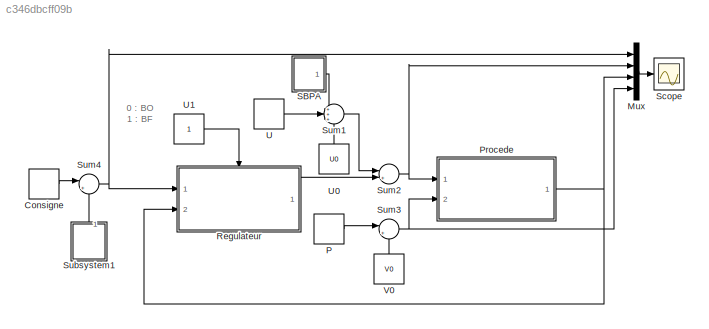
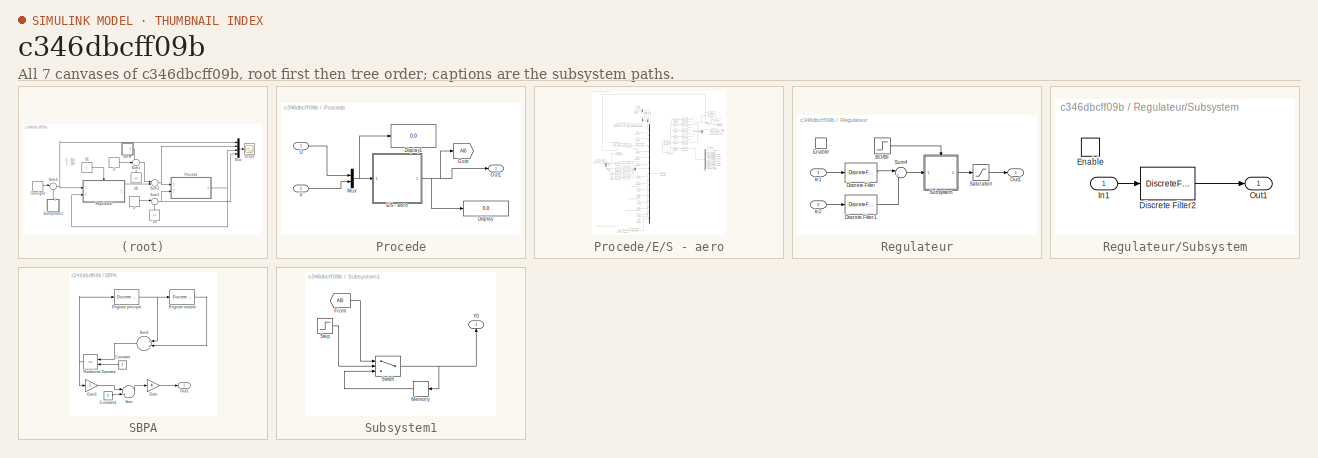
[diagram: thumbnail index - all 7 canvases of the model, root first then tree order]
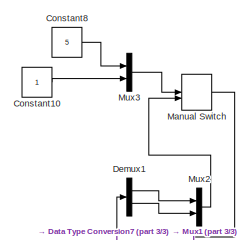
[diagram: Procede/E/S - aero - part 1/3, top center region]
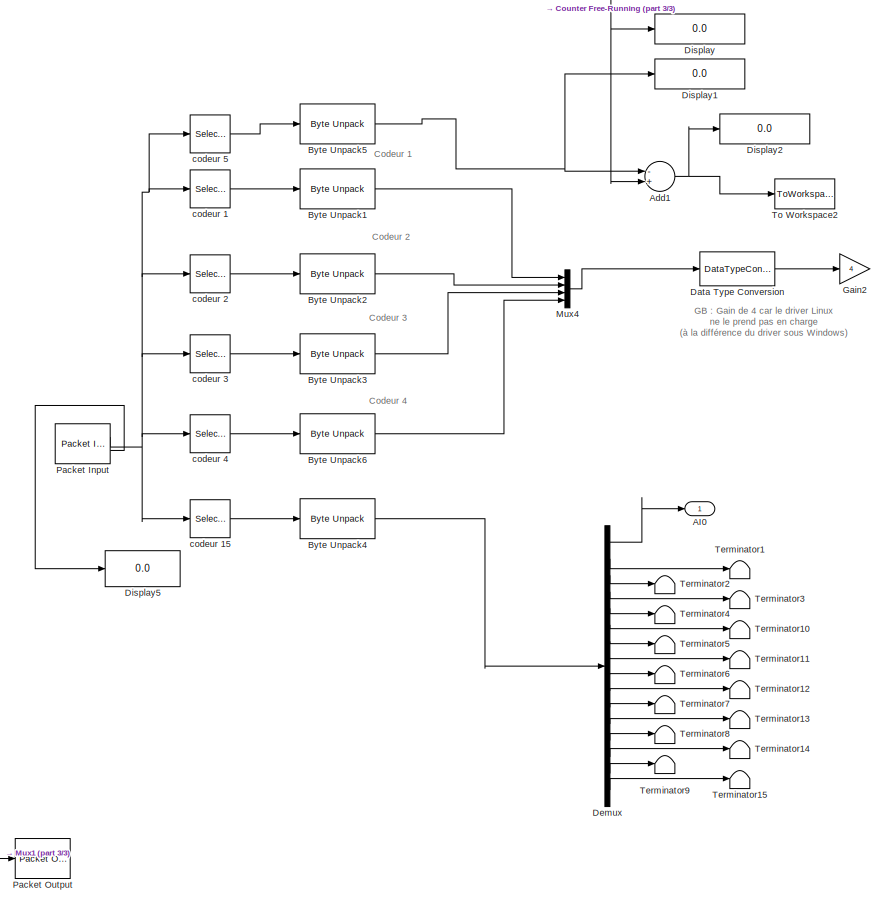
[diagram: Procede/E/S - aero - part 2/3, middle right region]
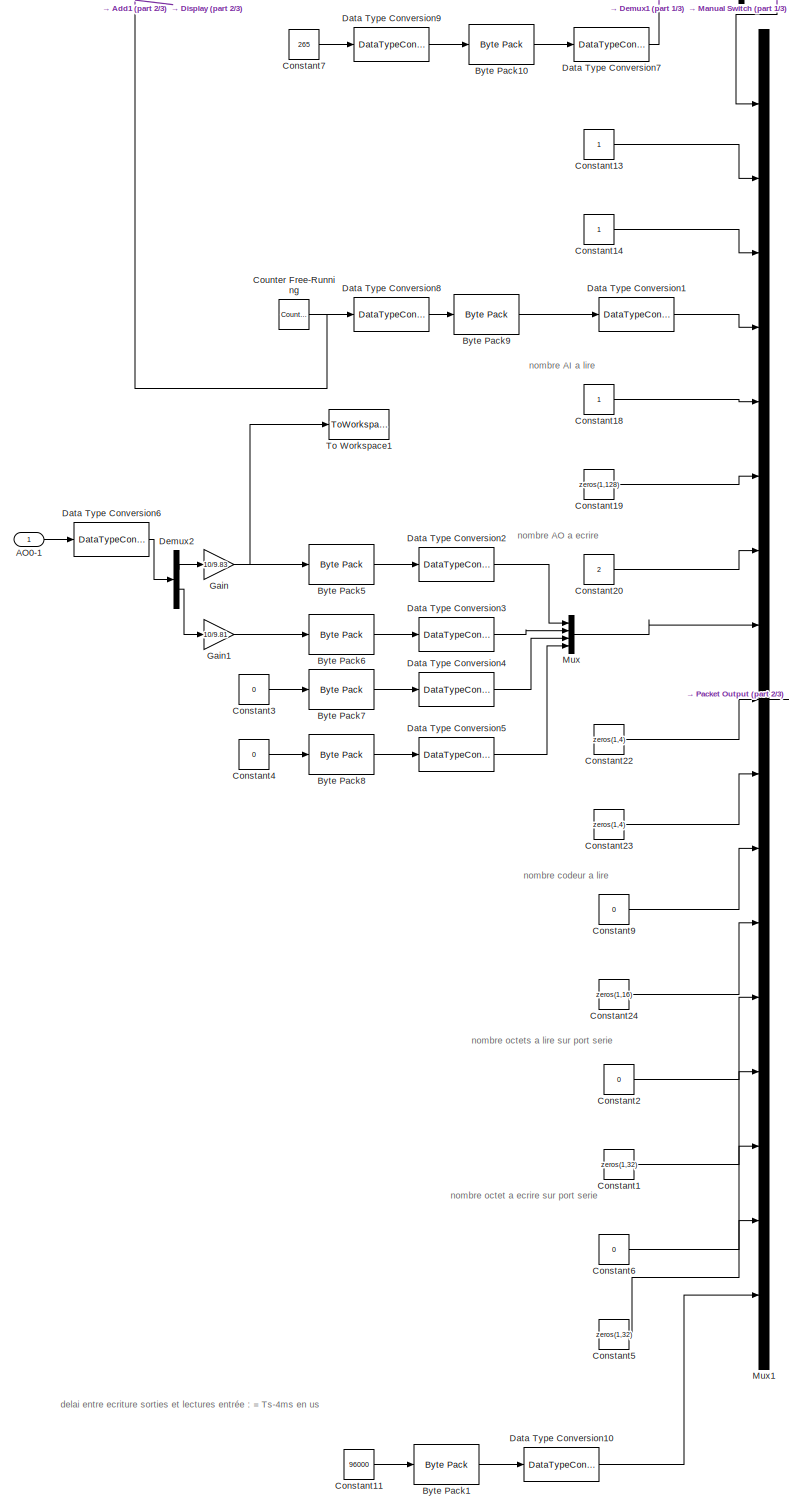
[diagram: Procede/E/S - aero - part 3/3, left side, full height]
MODEL slx_c346dbcff09b
KIND model
CONFIG AbsTol = auto
CONFIG EnableMultiTasking = off
CONFIG FixedStep = Ts
CONFIG MaxStep = auto
CONFIG MinStep = auto
CONFIG RelTol = 1e-3
CONFIG SampleTimeConstraint = Unconstrained
CONFIG Solver = ode5
CONFIG SolverName = ode5
CONFIG StartTime = 0.0
CONFIG StopTime = inf
BLOCK [DiscretePulseGenerator] Consigne
  Period = 200
  PhaseDelay = 100
  Ports = [0, 1]
  PulseType = Time based
  PulseWidth = 50
BLOCK [Mux] Mux
  DisplayOption = bar
  Ports = [4, 1]
BLOCK [DiscretePulseGenerator] P
  Amplitude = -1
  Period = 200
  PhaseDelay = 150
  Ports = [0, 1]
  PulseType = Time based
  PulseWidth = 50
BLOCK [SubSystem] Procede
  Ports = [2, 1]
  RequestExecContextInheritance = off
BLOCK [Display] Procede/Display
  Decimation = 1
  Ports = [1]
BLOCK [Display] Procede/Display1
  Decimation = 1
  Ports = [1]
BLOCK [SubSystem] Procede/E//S - aero
  Ports = [1, 1]
  RequestExecContextInheritance = off
BLOCK [Outport] Procede/E//S - aero/AI0
  IconDisplay = Port number
BLOCK [Inport] Procede/E//S - aero/AO0-1 
  IconDisplay = Port number
BLOCK [Sum] Procede/E//S - aero/Add1
  InputSameDT = off
  Inputs = -+
  OutDataTypeStr = Inherit: Inherit via internal rule
  Ports = [2, 1]
  SaturateOnIntegerOverflow = off
BLOCK [Reference] Procede/E//S - aero/Byte Pack1  REF=etargetslib/Byte Pack
  Ports = [1, 1]
  SourceBlock = etargetslib/Byte Pack
  SourceType = Byte pack
BLOCK [Reference] Procede/E//S - aero/Byte Pack10  REF=etargetslib/Byte Pack
  Ports = [1, 1]
  SourceBlock = etargetslib/Byte Pack
  SourceType = Byte pack
BLOCK [Reference] Procede/E//S - aero/Byte Pack5  REF=etargetslib/Byte Pack
  Ports = [1, 1]
  SourceBlock = etargetslib/Byte Pack
  SourceType = Byte pack
BLOCK [Reference] Procede/E//S - aero/Byte Pack6  REF=etargetslib/Byte Pack
  Ports = [1, 1]
  SourceBlock = etargetslib/Byte Pack
  SourceType = Byte pack
BLOCK [Reference] Procede/E//S - aero/Byte Pack7  REF=etargetslib/Byte Pack
  Ports = [1, 1]
  SourceBlock = etargetslib/Byte Pack
  SourceType = Byte pack
BLOCK [Reference] Procede/E//S - aero/Byte Pack8  REF=etargetslib/Byte Pack
  Ports = [1, 1]
  SourceBlock = etargetslib/Byte Pack
  SourceType = Byte pack
BLOCK [Reference] Procede/E//S - aero/Byte Pack9  REF=etargetslib/Byte Pack
  Ports = [1, 1]
  SourceBlock = etargetslib/Byte Pack
  SourceType = Byte pack
BLOCK [Reference] Procede/E//S - aero/Byte Unpack1  REF=etargetslib/Byte Unpack
  Ports = [1, 1]
  SourceBlock = etargetslib/Byte Unpack
  SourceType = Byte Unpack
BLOCK [Reference] Procede/E//S - aero/Byte Unpack2  REF=etargetslib/Byte Unpack
  Ports = [1, 1]
  SourceBlock = etargetslib/Byte Unpack
  SourceType = Byte Unpack
BLOCK [Reference] Procede/E//S - aero/Byte Unpack3  REF=etargetslib/Byte Unpack
  Ports = [1, 1]
  SourceBlock = etargetslib/Byte Unpack
  SourceType = Byte Unpack
BLOCK [Reference] Procede/E//S - aero/Byte Unpack4  REF=etargetslib/Byte Unpack
  Ports = [1, 1]
  SourceBlock = etargetslib/Byte Unpack
  SourceType = Byte Unpack
BLOCK [Reference] Procede/E//S - aero/Byte Unpack5  REF=etargetslib/Byte Unpack
  Ports = [1, 1]
  SourceBlock = etargetslib/Byte Unpack
  SourceType = Byte Unpack
BLOCK [Reference] Procede/E//S - aero/Byte Unpack6  REF=etargetslib/Byte Unpack
  Ports = [1, 1]
  SourceBlock = etargetslib/Byte Unpack
  SourceType = Byte Unpack
BLOCK [Constant] Procede/E//S - aero/Constant1
  Value = zeros(1,32)
BLOCK [Constant] Procede/E//S - aero/Constant10
BLOCK [Constant] Procede/E//S - aero/Constant11
  OutDataTypeStr = uint32
  Value = 96000
BLOCK [Constant] Procede/E//S - aero/Constant13
BLOCK [Constant] Procede/E//S - aero/Constant14
BLOCK [Constant] Procede/E//S - aero/Constant18
BLOCK [Constant] Procede/E//S - aero/Constant19
  Value = zeros(1,128)
BLOCK [Constant] Procede/E//S - aero/Constant2
  Value = 0
BLOCK [Constant] Procede/E//S - aero/Constant20
  OutDataTypeStr = Inherit: Inherit via back propagation
  Value = 2
BLOCK [Constant] Procede/E//S - aero/Constant22
  Value = zeros(1,4)
BLOCK [Constant] Procede/E//S - aero/Constant23
  Value = zeros(1,4)
BLOCK [Constant] Procede/E//S - aero/Constant24
  Value = zeros(1,16)
BLOCK [Constant] Procede/E//S - aero/Constant3
  OutDataTypeStr = double
  Value = 0
BLOCK [Constant] Procede/E//S - aero/Constant4
  OutDataTypeStr = double
  Value = 0
BLOCK [Constant] Procede/E//S - aero/Constant5
  Value = zeros(1,32)
BLOCK [Constant] Procede/E//S - aero/Constant6
  Value = 0
BLOCK [Constant] Procede/E//S - aero/Constant7
  Value = 265
BLOCK [Constant] Procede/E//S - aero/Constant8
  Value = 5
BLOCK [Constant] Procede/E//S - aero/Constant9
  Value = 0
BLOCK [Reference] Procede/E//S - aero/Counter Free-Running  REF=simulink/Sources/Counter
Free-Running
  Ports = [0, 1]
  SourceBlock = simulink/Sources/Counter\nFree-Running
  SourceProductBaseCode = SL
  SourceProductName = Simulink
  SourceType = Counter Free-Running
BLOCK [DataTypeConversion] Procede/E//S - aero/Data Type Conversion
  RndMeth = Floor
  SaturateOnIntegerOverflow = off
BLOCK [DataTypeConversion] Procede/E//S - aero/Data Type Conversion1
  RndMeth = Floor
  SaturateOnIntegerOverflow = off
BLOCK [DataTypeConversion] Procede/E//S - aero/Data Type Conversion10
  RndMeth = Floor
  SaturateOnIntegerOverflow = off
BLOCK [DataTypeConversion] Procede/E//S - aero/Data Type Conversion2
  RndMeth = Floor
  SaturateOnIntegerOverflow = off
BLOCK [DataTypeConversion] Procede/E//S - aero/Data Type Conversion3
  RndMeth = Floor
  SaturateOnIntegerOverflow = off
BLOCK [DataTypeConversion] Procede/E//S - aero/Data Type Conversion4
  RndMeth = Floor
  SaturateOnIntegerOverflow = off
BLOCK [DataTypeConversion] Procede/E//S - aero/Data Type Conversion5
  RndMeth = Floor
  SaturateOnIntegerOverflow = off
BLOCK [DataTypeConversion] Procede/E//S - aero/Data Type Conversion6
  RndMeth = Floor
  SaturateOnIntegerOverflow = off
BLOCK [DataTypeConversion] Procede/E//S - aero/Data Type Conversion7
  RndMeth = Floor
  SaturateOnIntegerOverflow = off
BLOCK [DataTypeConversion] Procede/E//S - aero/Data Type Conversion8
  RndMeth = Floor
  SaturateOnIntegerOverflow = off
BLOCK [DataTypeConversion] Procede/E//S - aero/Data Type Conversion9
  RndMeth = Floor
  SaturateOnIntegerOverflow = off
BLOCK [Demux] Procede/E//S - aero/Demux
  DisplayOption = bar
  Outputs = 16
  Ports = [1, 16]
BLOCK [Demux] Procede/E//S - aero/Demux1
  DisplayOption = bar
  Outputs = 2
  Ports = [1, 2]
BLOCK [Demux] Procede/E//S - aero/Demux2
  DisplayOption = bar
  Outputs = 2
  Ports = [1, 2]
BLOCK [Display] Procede/E//S - aero/Display
  Decimation = 1
  Ports = [1]
BLOCK [Display] Procede/E//S - aero/Display1
  Decimation = 1
  Ports = [1]
BLOCK [Display] Procede/E//S - aero/Display2
  Decimation = 1
  Ports = [1]
BLOCK [Display] Procede/E//S - aero/Display5
  Decimation = 1
  Ports = [1]
BLOCK [Gain] Procede/E//S - aero/Gain
  Gain = 10/9.83
  OutDataTypeStr = Inherit: Inherit via internal rule
  ParamDataTypeStr = Inherit: Inherit via internal rule
  SaturateOnIntegerOverflow = off
BLOCK [Gain] Procede/E//S - aero/Gain1
  Gain = 10/9.81
  OutDataTypeStr = Inherit: Inherit via internal rule
  ParamDataTypeStr = Inherit: Inherit via internal rule
  SaturateOnIntegerOverflow = off
BLOCK [Gain] Procede/E//S - aero/Gain2
  Gain = 4
  OutDataTypeStr = Inherit: Inherit via internal rule
  ParamDataTypeStr = Inherit: Inherit via internal rule
  SaturateOnIntegerOverflow = off
BLOCK [ManualSwitch] Procede/E//S - aero/Manual Switch
  CurrentSetting = 0
BLOCK [Mux] Procede/E//S - aero/Mux
  DisplayOption = bar
  Ports = [4, 1]
BLOCK [Mux] Procede/E//S - aero/Mux1
  DisplayOption = bar
  Inputs = 17
  Ports = [17, 1]
BLOCK [Mux] Procede/E//S - aero/Mux2
  DisplayOption = bar
  Inputs = 2
  Ports = [2, 1]
BLOCK [Mux] Procede/E//S - aero/Mux3
  DisplayOption = bar
  Inputs = 2
  Ports = [2, 1]
BLOCK [Mux] Procede/E//S - aero/Mux4
  DisplayOption = bar
  Ports = [4, 1]
BLOCK [Reference] Procede/E//S - aero/Packet Input  REF=sldrtlib/Packet Input
  AttributesFormatString = Standard Devices\nUDP Protocol [26CAh]
  Ports = [0, 2]
  SourceBlock = sldrtlib/Packet Input
  SourceProductBaseCode = WT
  SourceProductName = Simulink Desktop Real-Time
  SourceType = Simulink Desktop Real-Time Packet Input
BLOCK [Reference] Procede/E//S - aero/Packet Output  REF=sldrtlib/Packet Output
  AttributesFormatString = Standard Devices\nUDP Protocol [26CAh]
  Ports = [1]
  SourceBlock = sldrtlib/Packet Output
  SourceProductBaseCode = WT
  SourceProductName = Simulink Desktop Real-Time
  SourceType = Simulink Desktop Real-Time Packet Output
BLOCK [Terminator] Procede/E//S - aero/Terminator1
BLOCK [Terminator] Procede/E//S - aero/Terminator10
BLOCK [Terminator] Procede/E//S - aero/Terminator11
BLOCK [Terminator] Procede/E//S - aero/Terminator12
BLOCK [Terminator] Procede/E//S - aero/Terminator13
BLOCK [Terminator] Procede/E//S - aero/Terminator14
BLOCK [Terminator] Procede/E//S - aero/Terminator15
BLOCK [Terminator] Procede/E//S - aero/Terminator2
BLOCK [Terminator] Procede/E//S - aero/Terminator3
BLOCK [Terminator] Procede/E//S - aero/Terminator4
BLOCK [Terminator] Procede/E//S - aero/Terminator5
BLOCK [Terminator] Procede/E//S - aero/Terminator6
BLOCK [Terminator] Procede/E//S - aero/Terminator7
BLOCK [Terminator] Procede/E//S - aero/Terminator8
BLOCK [Terminator] Procede/E//S - aero/Terminator9
BLOCK [ToWorkspace] Procede/E//S - aero/To Workspace1
  MaxDataPoints = inf
  Ports = [1]
  SampleTime = -1
  SaveFormat = Structure With Time
  VariableName = aoser
BLOCK [ToWorkspace] Procede/E//S - aero/To Workspace2
  MaxDataPoints = inf
  Ports = [1]
  SampleTime = -1
  SaveFormat = Structure With Time
  VariableName = retard
BLOCK [Selector] Procede/E//S - aero/codeur 1
  IndexOptions = Index vector (dialog)
  Indices = [180 181 182 183]
  InputPortWidth = 265
  OutputSizes = 1
  Ports = [1, 1]
BLOCK [Selector] Procede/E//S - aero/codeur 15
  IndexOptions = Index vector (dialog)
  Indices = [10:137]
  InputPortWidth = 265
  OutputSizes = 1
  Ports = [1, 1]
BLOCK [Selector] Procede/E//S - aero/codeur 2
  IndexOptions = Index vector (dialog)
  Indices = [184 185 186 187]
  InputPortWidth = 265
  OutputSizes = 1
  Ports = [1, 1]
BLOCK [Selector] Procede/E//S - aero/codeur 3
  IndexOptions = Index vector (dialog)
  Indices = [188 189 190 191]
  InputPortWidth = 265
  OutputSizes = 1
  Ports = [1, 1]
BLOCK [Selector] Procede/E//S - aero/codeur 4
  IndexOptions = Index vector (dialog)
  Indices = [192 193 194 195]
  InputPortWidth = 265
  OutputSizes = 1
  Ports = [1, 1]
BLOCK [Selector] Procede/E//S - aero/codeur 5
  IndexOptions = Index vector (dialog)
  Indices = [5 6 7 8]
  InputPortWidth = 265
  OutputSizes = 1
  Ports = [1, 1]
BLOCK [Goto] Procede/Goto
  GotoTag = AI0
  TagVisibility = global
BLOCK [Mux] Procede/Mux
  DisplayOption = bar
  Inputs = 2
  Ports = [2, 1]
BLOCK [Outport] Procede/Out1
  IconDisplay = Port number
BLOCK [Inport] Procede/U
  IconDisplay = Port number
BLOCK [Inport] Procede/V
  IconDisplay = Port number
  Port = 2
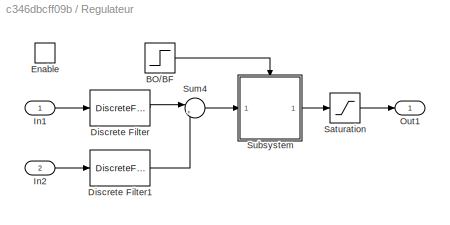
BLOCK [SubSystem] Regulateur
  Ports = [2, 1, 1]
  RequestExecContextInheritance = off
  TreatAsAtomicUnit = on
BLOCK [Step] Regulateur/BO//BF
  SampleTime = Ts
  Time = 10
BLOCK [DiscreteFilter] Regulateur/Discrete Filter
  Denominator = 1
  InputPortMap = u0
  Numerator = T
  Ports = [1, 1]
  SampleTime = Te
BLOCK [DiscreteFilter] Regulateur/Discrete Filter1
  Denominator = 1
  InputPortMap = u0
  Numerator = R
  Ports = [1, 1]
  SampleTime = Te
BLOCK [EnablePort] Regulateur/Enable
  Ports = []
BLOCK [Inport] Regulateur/In1
  IconDisplay = Port number
BLOCK [Inport] Regulateur/In2
  IconDisplay = Port number
  Port = 2
BLOCK [Outport] Regulateur/Out1
  IconDisplay = Port number
BLOCK [Saturate] Regulateur/Saturation
  InputPortMap = u0
  LowerLimit = 0-U0
  Ports = [1, 1]
  UpperLimit = 10-U0
BLOCK [SubSystem] Regulateur/Subsystem
  Ports = [1, 1, 1]
  RequestExecContextInheritance = off
  TreatAsAtomicUnit = on
BLOCK [DiscreteFilter] Regulateur/Subsystem/Discrete Filter2
  Denominator = S
  InputPortMap = u0
  Numerator = 1
  Ports = [1, 1]
  SampleTime = Te
BLOCK [EnablePort] Regulateur/Subsystem/Enable
  Ports = []
BLOCK [Inport] Regulateur/Subsystem/In1
  IconDisplay = Port number
BLOCK [Outport] Regulateur/Subsystem/Out1
  IconDisplay = Port number
BLOCK [Sum] Regulateur/Sum4
  IconShape = round
  Inputs = |+-
  Ports = [2, 1]
BLOCK [SubSystem] SBPA
  Ports = [0, 1]
  RequestExecContextInheritance = off
BLOCK [Constant] SBPA/Constant
BLOCK [Constant] SBPA/Constant1
BLOCK [Gain] SBPA/Gain
  Gain = A
BLOCK [Gain] SBPA/Gain1
  Gain = 2
BLOCK [Outport] SBPA/Out1
  IconDisplay = Port number
BLOCK [Reference] SBPA/Registre modulo  REF=simulink_extras/Additional
Discrete/Discrete
Transfer Fcn
(with initial states)
  Ports = [1, 1]
  SourceBlock = simulink_extras/Additional\nDiscrete/Discrete\nTransfer Fcn\n(with initial states)
  SourceProductBaseCode = SL
  SourceProductName = Simulink
  SourceType = Discrete Transfer Function with Initial States
BLOCK [Reference] SBPA/Registre principal  REF=simulink_extras/Additional
Discrete/Discrete
Transfer Fcn
(with initial states)
  Ports = [1, 1]
  SourceBlock = simulink_extras/Additional\nDiscrete/Discrete\nTransfer Fcn\n(with initial states)
  SourceProductBaseCode = SL
  SourceProductName = Simulink
  SourceType = Discrete Transfer Function with Initial States
BLOCK [RelationalOperator] SBPA/Relational Operator
  Operator = ==
  Ports = [2, 1]
BLOCK [Sum] SBPA/Sum
  Inputs = |+-
  Ports = [2, 1]
BLOCK [Sum] SBPA/Sum1
  Ports = [2, 1]
BLOCK [Scope] Scope
  ExtModeUploadOption = log
  Floating = off
  NumInputPorts = 1
  Ports = [1]
  ScopeSpecificationString = Simulink.scopes.TimeScopeBlockCfg('CurrentConfiguration', extmgr.ConfigurationSet(extmgr.Configuration('Core','General UI',true),extmgr.Configuration('Core','Source UI',true),extmgr.Configuration('Sources','WiredSimulink',true,'DataLogging',true,'DataLoggingVariableName','X','DataLoggingSaveFormat','StructureWithTime','DataLoggingMaxPoints','80000','DataLoggingDecimation','1','DataLoggingDecimateD...<+1737ch>
BLOCK [SubSystem] Subsystem1
  Ports = [0, 1]
  RequestExecContextInheritance = off
BLOCK [From] Subsystem1/From
  GotoTag = AI0
  TagVisibility = global
BLOCK [Memory] Subsystem1/Memory
BLOCK [Step] Subsystem1/Step
  After = 0
  Before = 1
  SampleTime = Ts
BLOCK [Switch] Subsystem1/Switch
  Criteria = u2 ~= 0
  InputSameDT = off
  SaturateOnIntegerOverflow = off
BLOCK [Outport] Subsystem1/Y0
  IconDisplay = Port number
BLOCK [Sum] Sum1
  IconShape = round
  Inputs = +++
  Ports = [3, 1]
BLOCK [Sum] Sum2
  IconShape = round
  Inputs = |++
  Ports = [2, 1]
BLOCK [Sum] Sum3
  IconShape = round
  Inputs = |++
  Ports = [2, 1]
BLOCK [Sum] Sum4
  IconShape = round
  Inputs = |++
  Ports = [2, 1]
BLOCK [DiscretePulseGenerator] U
  Amplitude = 0
  Period = 200
  PhaseDelay = 100
  Ports = [0, 1]
  PulseType = Time based
  PulseWidth = 50
BLOCK [Constant] U0
  Value = U0
BLOCK [Constant] U1
BLOCK [Constant] V0
  Value = V0
ANNOTATION (root): 0 : BO 1 : BF
ANNOTATION Procede/E//S - aero: Codeur 1
ANNOTATION Procede/E//S - aero: Codeur 2
ANNOTATION Procede/E//S - aero: Codeur 3
ANNOTATION Procede/E//S - aero: Codeur 4
ANNOTATION Procede/E//S - aero: GB : Gain de 4 car le driver Linux ne le prend pas en charge (à la différence du driver sous Windows)
ANNOTATION Procede/E//S - aero: delai entre ecriture sorties et lectures entrée : = Ts-4ms en us
ANNOTATION Procede/E//S - aero: nombre AI a lire
ANNOTATION Procede/E//S - aero: nombre AO a ecrire
ANNOTATION Procede/E//S - aero: nombre codeur a lire
ANNOTATION Procede/E//S - aero: nombre octet a ecrire sur port serie
ANNOTATION Procede/E//S - aero: nombre octets a lire sur port serie
LINE Consigne:1 -> Sum4:1
LINE Mux:1 -> Scope:1
LINE P:1 -> Sum3:1
LINE Procede/E//S - aero/AO0-1 :1 -> Procede/E//S - aero/Data Type Conversion6:1
NET Procede/E//S - aero/Add1:1 -> Procede/E//S - aero/Display2:1, Procede/E//S - aero/To Workspace2:1
LINE Procede/E//S - aero/Byte Pack10:1 -> Procede/E//S - aero/Data Type Conversion7:1
LINE Procede/E//S - aero/Byte Pack1:1 -> Procede/E//S - aero/Data Type Conversion10:1
LINE Procede/E//S - aero/Byte Pack5:1 -> Procede/E//S - aero/Data Type Conversion2:1
LINE Procede/E//S - aero/Byte Pack6:1 -> Procede/E//S - aero/Data Type Conversion3:1
LINE Procede/E//S - aero/Byte Pack7:1 -> Procede/E//S - aero/Data Type Conversion4:1
LINE Procede/E//S - aero/Byte Pack8:1 -> Procede/E//S - aero/Data Type Conversion5:1
LINE Procede/E//S - aero/Byte Pack9:1 -> Procede/E//S - aero/Data Type Conversion1:1
LINE Procede/E//S - aero/Byte Unpack1:1 -> Procede/E//S - aero/Mux4:1
LINE Procede/E//S - aero/Byte Unpack2:1 -> Procede/E//S - aero/Mux4:2
LINE Procede/E//S - aero/Byte Unpack3:1 -> Procede/E//S - aero/Mux4:3
LINE Procede/E//S - aero/Byte Unpack4:1 -> Procede/E//S - aero/Demux:1
NET Procede/E//S - aero/Byte Unpack5:1 -> Procede/E//S - aero/Add1:1, Procede/E//S - aero/Display1:1
LINE Procede/E//S - aero/Byte Unpack6:1 -> Procede/E//S - aero/Mux4:4
LINE Procede/E//S - aero/Constant10:1 -> Procede/E//S - aero/Mux3:2
LINE Procede/E//S - aero/Constant11:1 -> Procede/E//S - aero/Byte Pack1:1
LINE Procede/E//S - aero/Constant13:1 -> Procede/E//S - aero/Mux1:2
LINE Procede/E//S - aero/Constant14:1 -> Procede/E//S - aero/Mux1:3
LINE Procede/E//S - aero/Constant18:1 -> Procede/E//S - aero/Mux1:5
LINE Procede/E//S - aero/Constant19:1 -> Procede/E//S - aero/Mux1:6
LINE Procede/E//S - aero/Constant1:1 -> Procede/E//S - aero/Mux1:14
LINE Procede/E//S - aero/Constant20:1 -> Procede/E//S - aero/Mux1:7
LINE Procede/E//S - aero/Constant22:1 -> Procede/E//S - aero/Mux1:9
LINE Procede/E//S - aero/Constant23:1 -> Procede/E//S - aero/Mux1:10
LINE Procede/E//S - aero/Constant24:1 -> Procede/E//S - aero/Mux1:12
LINE Procede/E//S - aero/Constant2:1 -> Procede/E//S - aero/Mux1:13
LINE Procede/E//S - aero/Constant3:1 -> Procede/E//S - aero/Byte Pack7:1
LINE Procede/E//S - aero/Constant4:1 -> Procede/E//S - aero/Byte Pack8:1
LINE Procede/E//S - aero/Constant5:1 -> Procede/E//S - aero/Mux1:16
LINE Procede/E//S - aero/Constant6:1 -> Procede/E//S - aero/Mux1:15
LINE Procede/E//S - aero/Constant7:1 -> Procede/E//S - aero/Data Type Conversion9:1
LINE Procede/E//S - aero/Constant8:1 -> Procede/E//S - aero/Mux3:1
LINE Procede/E//S - aero/Constant9:1 -> Procede/E//S - aero/Mux1:11
NET Procede/E//S - aero/Counter Free-Running:1 -> Procede/E//S - aero/Add1:2, Procede/E//S - aero/Data Type Conversion8:1, Procede/E//S - aero/Display:1
LINE Procede/E//S - aero/Data Type Conversion10:1 -> Procede/E//S - aero/Mux1:17
LINE Procede/E//S - aero/Data Type Conversion1:1 -> Procede/E//S - aero/Mux1:4
LINE Procede/E//S - aero/Data Type Conversion2:1 -> Procede/E//S - aero/Mux:1
LINE Procede/E//S - aero/Data Type Conversion3:1 -> Procede/E//S - aero/Mux:2
LINE Procede/E//S - aero/Data Type Conversion4:1 -> Procede/E//S - aero/Mux:3
LINE Procede/E//S - aero/Data Type Conversion5:1 -> Procede/E//S - aero/Mux:4
LINE Procede/E//S - aero/Data Type Conversion6:1 -> Procede/E//S - aero/Demux2:1
LINE Procede/E//S - aero/Data Type Conversion7:1 -> Procede/E//S - aero/Demux1:1
LINE Procede/E//S - aero/Data Type Conversion8:1 -> Procede/E//S - aero/Byte Pack9:1
LINE Procede/E//S - aero/Data Type Conversion9:1 -> Procede/E//S - aero/Byte Pack10:1
LINE Procede/E//S - aero/Data Type Conversion:1 -> Procede/E//S - aero/Gain2:1
LINE Procede/E//S - aero/Demux1:1 -> Procede/E//S - aero/Mux2:1
LINE Procede/E//S - aero/Demux1:2 -> Procede/E//S - aero/Mux2:2
LINE Procede/E//S - aero/Demux2:1 -> Procede/E//S - aero/Gain:1
LINE Procede/E//S - aero/Demux2:2 -> Procede/E//S - aero/Gain1:1
LINE Procede/E//S - aero/Demux:1 -> Procede/E//S - aero/AI0:1
LINE Procede/E//S - aero/Demux:10 -> Procede/E//S - aero/Terminator12:1
LINE Procede/E//S - aero/Demux:11 -> Procede/E//S - aero/Terminator7:1
LINE Procede/E//S - aero/Demux:12 -> Procede/E//S - aero/Terminator13:1
LINE Procede/E//S - aero/Demux:13 -> Procede/E//S - aero/Terminator8:1
LINE Procede/E//S - aero/Demux:14 -> Procede/E//S - aero/Terminator14:1
LINE Procede/E//S - aero/Demux:15 -> Procede/E//S - aero/Terminator9:1
LINE Procede/E//S - aero/Demux:16 -> Procede/E//S - aero/Terminator15:1
LINE Procede/E//S - aero/Demux:2 -> Procede/E//S - aero/Terminator1:1
LINE Procede/E//S - aero/Demux:3 -> Procede/E//S - aero/Terminator2:1
LINE Procede/E//S - aero/Demux:4 -> Procede/E//S - aero/Terminator3:1
LINE Procede/E//S - aero/Demux:5 -> Procede/E//S - aero/Terminator4:1
LINE Procede/E//S - aero/Demux:6 -> Procede/E//S - aero/Terminator10:1
LINE Procede/E//S - aero/Demux:7 -> Procede/E//S - aero/Terminator5:1
LINE Procede/E//S - aero/Demux:8 -> Procede/E//S - aero/Terminator11:1
LINE Procede/E//S - aero/Demux:9 -> Procede/E//S - aero/Terminator6:1
LINE Procede/E//S - aero/Gain1:1 -> Procede/E//S - aero/Byte Pack6:1
NET Procede/E//S - aero/Gain:1 -> Procede/E//S - aero/Byte Pack5:1, Procede/E//S - aero/To Workspace1:1
LINE Procede/E//S - aero/Manual Switch:1 -> Procede/E//S - aero/Mux1:1
LINE Procede/E//S - aero/Mux1:1 -> Procede/E//S - aero/Packet Output:1
LINE Procede/E//S - aero/Mux2:1 -> Procede/E//S - aero/Manual Switch:2
LINE Procede/E//S - aero/Mux3:1 -> Procede/E//S - aero/Manual Switch:1
LINE Procede/E//S - aero/Mux4:1 -> Procede/E//S - aero/Data Type Conversion:1
LINE Procede/E//S - aero/Mux:1 -> Procede/E//S - aero/Mux1:8
NET Procede/E//S - aero/Packet Input:1 -> Procede/E//S - aero/codeur 15:1, Procede/E//S - aero/codeur 1:1, Procede/E//S - aero/codeur 2:1, Procede/E//S - aero/codeur 3:1, Procede/E//S - aero/codeur 4:1, Procede/E//S - aero/codeur 5:1
LINE Procede/E//S - aero/Packet Input:2 -> Procede/E//S - aero/Display5:1
LINE Procede/E//S - aero/codeur 15:1 -> Procede/E//S - aero/Byte Unpack4:1
LINE Procede/E//S - aero/codeur 1:1 -> Procede/E//S - aero/Byte Unpack1:1
LINE Procede/E//S - aero/codeur 2:1 -> Procede/E//S - aero/Byte Unpack2:1
LINE Procede/E//S - aero/codeur 3:1 -> Procede/E//S - aero/Byte Unpack3:1
LINE Procede/E//S - aero/codeur 4:1 -> Procede/E//S - aero/Byte Unpack6:1
LINE Procede/E//S - aero/codeur 5:1 -> Procede/E//S - aero/Byte Unpack5:1
NET Procede/E//S - aero:1 -> Procede/Display:1, Procede/Goto:1, Procede/Out1:1
NET Procede/Mux:1 -> Procede/Display1:1, Procede/E//S - aero:1
LINE Procede/U:1 -> Procede/Mux:1
LINE Procede/V:1 -> Procede/Mux:2
NET Procede:1 -> Mux:3, Regulateur:2
LINE Regulateur/BO//BF:1 -> Regulateur/Subsystem:enable
LINE Regulateur/Discrete Filter1:1 -> Regulateur/Sum4:2
LINE Regulateur/Discrete Filter:1 -> Regulateur/Sum4:1
LINE Regulateur/In1:1 -> Regulateur/Discrete Filter:1
LINE Regulateur/In2:1 -> Regulateur/Discrete Filter1:1
LINE Regulateur/Saturation:1 -> Regulateur/Out1:1
LINE Regulateur/Subsystem/Discrete Filter2:1 -> Regulateur/Subsystem/Out1:1
LINE Regulateur/Subsystem/In1:1 -> Regulateur/Subsystem/Discrete Filter2:1
LINE Regulateur/Subsystem:1 -> Regulateur/Saturation:1
LINE Regulateur/Sum4:1 -> Regulateur/Subsystem:1
LINE Regulateur:1 -> Sum2:2
LINE SBPA/Constant1:1 -> SBPA/Sum:2
LINE SBPA/Constant:1 -> SBPA/Relational Operator:2
LINE SBPA/Gain1:1 -> SBPA/Sum:1
LINE SBPA/Gain:1 -> SBPA/Out1:1
LINE SBPA/Registre modulo:1 -> SBPA/Sum1:2
NET SBPA/Registre principal:1 -> SBPA/Registre modulo:1, SBPA/Sum1:1
NET SBPA/Relational Operator:1 -> SBPA/Gain1:1, SBPA/Registre principal:1
LINE SBPA/Sum1:1 -> SBPA/Relational Operator:1
LINE SBPA/Sum:1 -> SBPA/Gain:1
LINE SBPA:1 -> Sum1:1
LINE Subsystem1/From:1 -> Subsystem1/Switch:1
LINE Subsystem1/Memory:1 -> Subsystem1/Switch:3
LINE Subsystem1/Step:1 -> Subsystem1/Switch:2
NET Subsystem1/Switch:1 -> Subsystem1/Memory:1, Subsystem1/Y0:1
LINE Subsystem1:1 -> Sum4:2
LINE Sum1:1 -> Sum2:1
NET Sum2:1 -> Mux:2, Procede:1
NET Sum3:1 -> Mux:4, Procede:2
NET Sum4:1 -> Mux:1, Regulateur:1
LINE U0:1 -> Sum1:3
LINE U1:1 -> Regulateur:enable
LINE U:1 -> Sum1:2
LINE V0:1 -> Sum3:2
note: NET lines group one-source signal fan-out (src -> all destinations, sorted); 1:1 wires keep LINE
